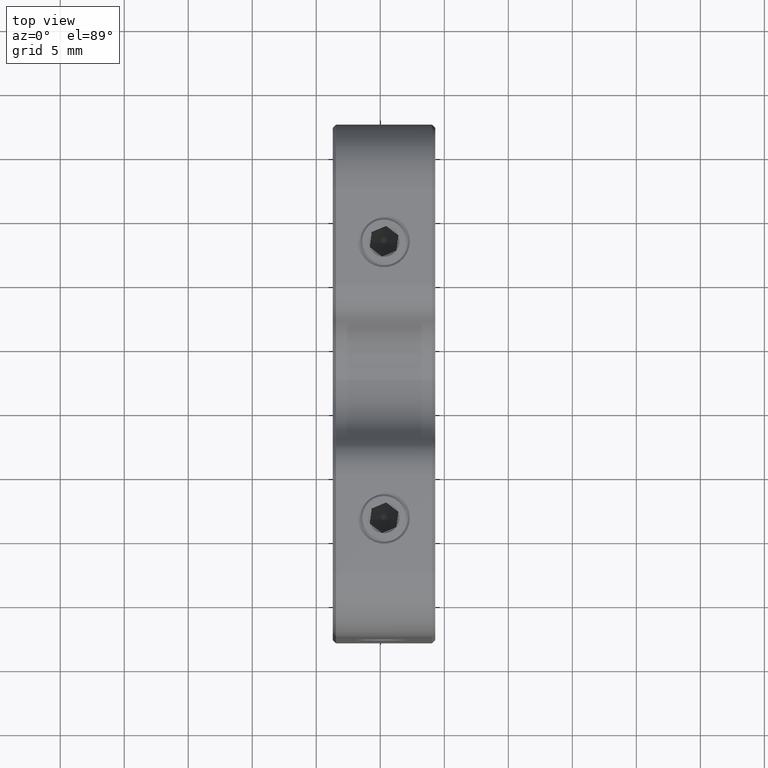
[diagram: clean part render]
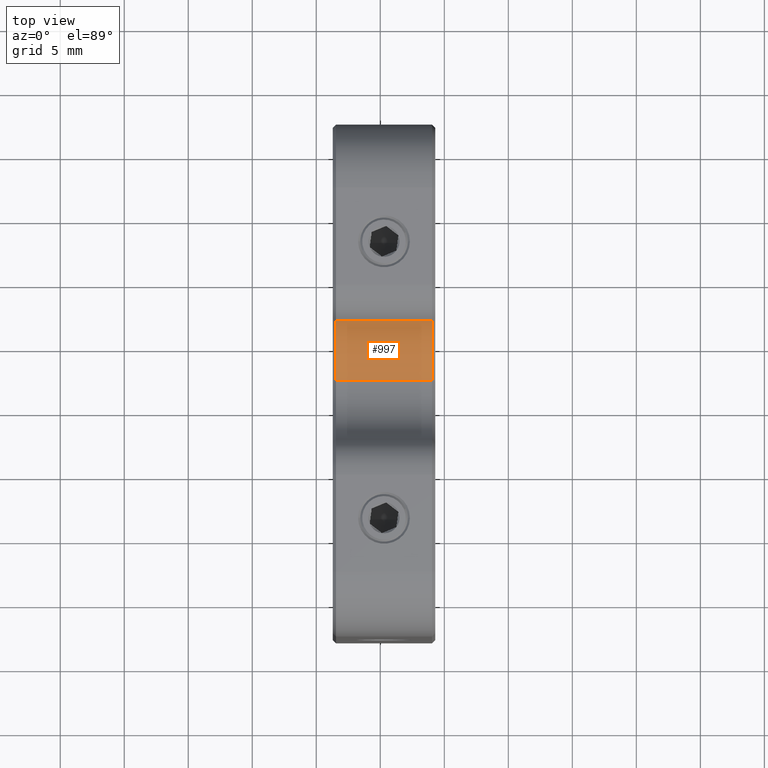
[diagram: same view with one face highlighted and labeled with its STEP entity id]
A machine part, top view. The second image highlights one B-rep face of the part: STEP entity #997.
In plain terms, the highlighted cylindrical surface (partial cylindrical patch) has radius 5 mm, axis along (1, -0, -0).
Its self-contained STEP definition (entity closure, byte-faithful):
#21 = DIRECTION ( 'NONE',  ( 1.000000000000000000, -0.000000000000000000, -0.000000000000000000 ) ) ;
#74 = DIRECTION ( 'NONE',  ( 0.000000000000000000, 0.000000000000000000, -1.000000000000000000 ) ) ;
#333 = CARTESIAN_POINT ( 'NONE',  ( -18.70960063692994879, 2.109301223409106196, 55.00000000000001421 ) ) ;
#997 = ADVANCED_FACE ( 'NONE', ( #7860 ), #4184, .F. ) ;
#1130 = DIRECTION ( 'NONE',  ( 0.000000000000000000, 0.000000000000000000, -1.000000000000000000 ) ) ;
#1338 = CARTESIAN_POINT ( 'NONE',  ( -18.70960063692994879, 2.109301223409106196, 60.00000000000001421 ) ) ;
#1387 = CARTESIAN_POINT ( 'NONE',  ( -18.45960063692994879, 2.109301223409106196, 60.00000000000001421 ) ) ;
#1546 = ORIENTED_EDGE ( 'NONE', *, *, #4695, .T. ) ;
#1602 = CARTESIAN_POINT ( 'NONE',  ( -18.45960063692994879, 2.109301223409106196, 55.00000000000001421 ) ) ;
#1629 = DIRECTION ( 'NONE',  ( 1.000000000000000000, -0.000000000000000000, -0.000000000000000000 ) ) ;
#1798 = DIRECTION ( 'NONE',  ( -1.000000000000000000, 0.000000000000000000, 0.000000000000000000 ) ) ;
#1818 = CARTESIAN_POINT ( 'NONE',  ( -18.45960063692994879, 6.744425277843895117, 58.12500000000000711 ) ) ;
#1836 = AXIS2_PLACEMENT_3D ( 'NONE', #7166, #3497, #1130 ) ;
#2508 = AXIS2_PLACEMENT_3D ( 'NONE', #1338, #21, #74 ) ;
#2599 = VERTEX_POINT ( 'NONE', #7126 ) ;
#2691 = AXIS2_PLACEMENT_3D ( 'NONE', #1387, #7439, #3104 ) ;
#3045 = VECTOR ( 'NONE', #1629, 1000.000000000000000 ) ;
#3104 = DIRECTION ( 'NONE',  ( 0.000000000000000000, 1.734723475976808080E-15, -1.000000000000000000 ) ) ;
#3260 = ORIENTED_EDGE ( 'NONE', *, *, #7244, .T. ) ;
#3261 = VERTEX_POINT ( 'NONE', #4796 ) ;
#3497 = DIRECTION ( 'NONE',  ( 1.000000000000000000, 0.000000000000000000, 0.000000000000000000 ) ) ;
#3721 = CIRCLE ( 'NONE', #1836, 4.999999999999997335 ) ;
#4010 = VERTEX_POINT ( 'NONE', #1818 ) ;
#4184 = CYLINDRICAL_SURFACE ( 'NONE', #2508, 4.999999999999997335 ) ;
#4695 = EDGE_CURVE ( 'NONE', #3261, #4010, #4916, .T. ) ;
#4796 = CARTESIAN_POINT ( 'NONE',  ( -10.95960063692994879, 6.744425277843895117, 58.12500000000000711 ) ) ;
#4916 = LINE ( 'NONE', #6683, #6076 ) ;
#5310 = CIRCLE ( 'NONE', #2691, 4.999999999999997335 ) ;
#5418 = EDGE_CURVE ( 'NONE', #4010, #7306, #5310, .T. ) ;
#5670 = EDGE_LOOP ( 'NONE', ( #7797, #3260, #6179, #1546 ) ) ;
#5734 = LINE ( 'NONE', #333, #3045 ) ;
#6076 = VECTOR ( 'NONE', #1798, 1000.000000000000000 ) ;
#6179 = ORIENTED_EDGE ( 'NONE', *, *, #7327, .T. ) ;
#6683 = CARTESIAN_POINT ( 'NONE',  ( -18.70960063692994879, 6.744425277843895117, 58.12500000000000711 ) ) ;
#7126 = CARTESIAN_POINT ( 'NONE',  ( -10.95960063692994879, 2.109301223409106196, 55.00000000000001421 ) ) ;
#7166 = CARTESIAN_POINT ( 'NONE',  ( -10.95960063692994879, 2.109301223409106196, 60.00000000000001421 ) ) ;
#7244 = EDGE_CURVE ( 'NONE', #7306, #2599, #5734, .T. ) ;
#7306 = VERTEX_POINT ( 'NONE', #1602 ) ;
#7327 = EDGE_CURVE ( 'NONE', #2599, #3261, #3721, .T. ) ;
#7439 = DIRECTION ( 'NONE',  ( -1.000000000000000000, -0.000000000000000000, -0.000000000000000000 ) ) ;
#7797 = ORIENTED_EDGE ( 'NONE', *, *, #5418, .T. ) ;
#7860 = FACE_OUTER_BOUND ( 'NONE', #5670, .T. ) ;